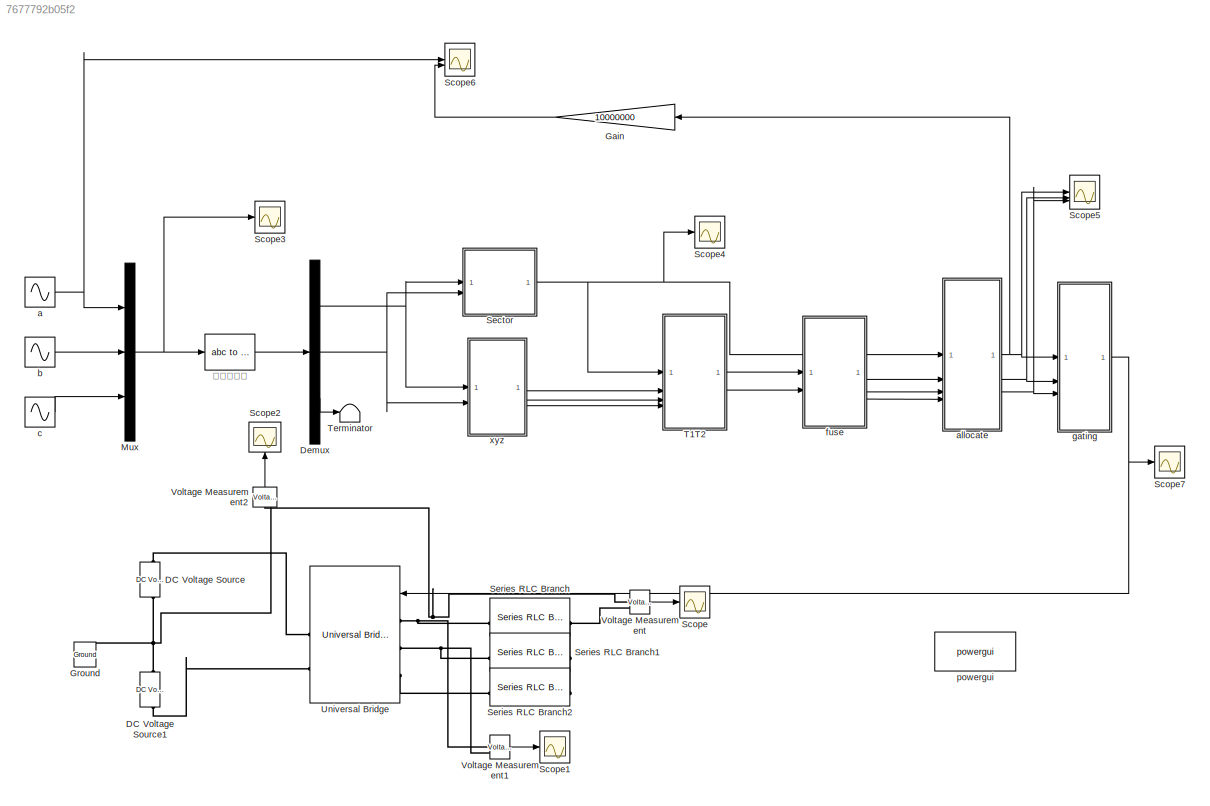
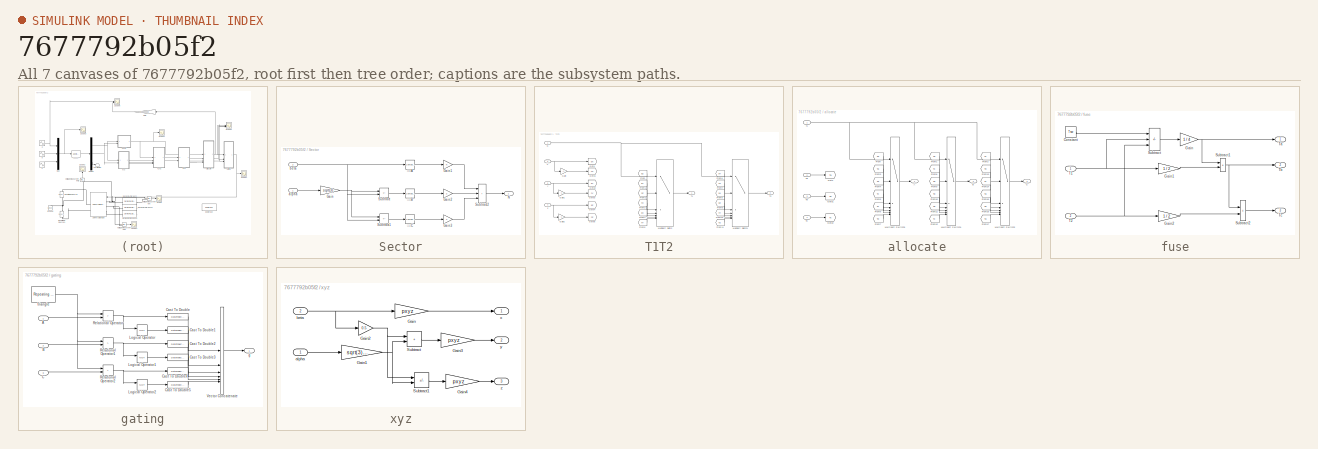
[diagram: thumbnail index - all 7 canvases of the model, root first then tree order]
MODEL slx_7677792b05f2
KIND model
CONFIG AbsTol = auto
CONFIG EnableMultiTasking = off
CONFIG FixedStep = auto
CONFIG MaxStep = auto
CONFIG MinStep = auto
CONFIG RelTol = 1e-3
CONFIG SampleTimeConstraint = Unconstrained
CONFIG SolverName = FixedStepAuto
CONFIG StartTime = 0.0
CONFIG StopTime = 0.1
BLOCK [Reference] DC Voltage Source  REF=spsDCVoltageSourceLib/DC Voltage Source
  LibrarySourceBlock = sps_lib/Sources/DC Voltage Source
  SourceBlock = spsDCVoltageSourceLib/DC Voltage Source
  SourceType = DC Voltage Source
BLOCK [Reference] DC Voltage Source1  REF=spsDCVoltageSourceLib/DC Voltage Source
  LibrarySourceBlock = sps_lib/Sources/DC Voltage Source
  SourceBlock = spsDCVoltageSourceLib/DC Voltage Source
  SourceType = DC Voltage Source
BLOCK [Demux] Demux
  Outputs = 3
BLOCK [Gain] Gain
  Gain = 10000000
BLOCK [Reference] Ground  REF=spsGroundLib/Ground
  LibrarySourceBlock = sps_lib/Utilities/Ground
  NameLocation = right
  SourceBlock = spsGroundLib/Ground
  SourceType = Ground
BLOCK [Mux] Mux
  DisplayOption = bar
  Inputs = 3
BLOCK [Scope] Scope
  Floating = off
  NumInputPorts = 1
  ScopeSpecificationString = Simulink.scopes.TimeScopeBlockCfg('CurrentConfiguration', extmgr.ConfigurationSet(extmgr.Configuration('Core','General UI',true),extmgr.Configuration('Core','Source UI',true),extmgr.Configuration('Sources','WiredSimulink',true),extmgr.Configuration('Visuals','Time Domain',true,'SerializedDisplays',{struct('MinYLimReal','-416.59303','MaxYLimReal','416.5969','YLabelReal','','MinYLimMag',' 0.00000','...<+1438ch>
BLOCK [Scope] Scope1
  Floating = off
  NumInputPorts = 1
  ScopeSpecificationString = Simulink.scopes.TimeScopeBlockCfg('CurrentConfiguration', extmgr.ConfigurationSet(extmgr.Configuration('Core','General UI',true),extmgr.Configuration('Core','Source UI',true),extmgr.Configuration('Sources','WiredSimulink',true,'DataLoggingVariableName','ScopeData1'),extmgr.Configuration('Visuals','Time Domain',true,'SerializedDisplays',{struct('MinYLimReal','-625.04011','MaxYLimReal','625.04018','...<+1501ch>
BLOCK [Scope] Scope2
  Floating = off
  NameLocation = right
  NumInputPorts = 1
  ScopeSpecificationString = Simulink.scopes.TimeScopeBlockCfg('CurrentConfiguration', extmgr.ConfigurationSet(extmgr.Configuration('Core','General UI',true),extmgr.Configuration('Core','Source UI',true),extmgr.Configuration('Sources','WiredSimulink',true,'DataLoggingVariableName','ScopeData2'),extmgr.Configuration('Visuals','Time Domain',true,'SerializedDisplays',{struct('MinYLimReal','-312.73361','MaxYLimReal','312.73406','...<+1552ch>
BLOCK [Scope] Scope3
  Floating = off
  NumInputPorts = 1
  ScopeSpecificationString = Simulink.scopes.TimeScopeBlockCfg('CurrentConfiguration', extmgr.ConfigurationSet(extmgr.Configuration('Core','General UI',true),extmgr.Configuration('Core','Source UI',true),extmgr.Configuration('Sources','WiredSimulink',true,'DataLoggingVariableName','ScopeData3'),extmgr.Configuration('Visuals','Time Domain',true,'SerializedDisplays',{struct('MinYLimReal','-224.53656','MaxYLimReal','224.53656','...<+1471ch>
BLOCK [Scope] Scope4
  Floating = off
  NumInputPorts = 1
  ScopeSpecificationString = Simulink.scopes.TimeScopeBlockCfg('CurrentConfiguration', extmgr.ConfigurationSet(extmgr.Configuration('Core','General UI',true),extmgr.Configuration('Core','Source UI',true),extmgr.Configuration('Sources','WiredSimulink',true,'DataLoggingVariableName','ScopeData4'),extmgr.Configuration('Visuals','Time Domain',true,'SerializedDisplays',{struct('MinYLimReal','0.375','MaxYLimReal','6.625','YLabelRea...<+1465ch>
BLOCK [Scope] Scope5
  Floating = off
  NumInputPorts = 3
  ScopeSpecificationString = Simulink.scopes.TimeScopeBlockCfg('CurrentConfiguration', extmgr.ConfigurationSet(extmgr.Configuration('Core','General UI',true),extmgr.Configuration('Core','Source UI',true),extmgr.Configuration('Sources','WiredSimulink',true,'DataLoggingVariableName','ScopeData5'),extmgr.Configuration('Visuals','Time Domain',true,'SerializedDisplays',{struct('MinYLimReal','0.000007','MaxYLimReal','0.000042','YLa...<+1563ch>
BLOCK [Scope] Scope6
  Floating = off
  NumInputPorts = 2
  ScopeSpecificationString = Simulink.scopes.TimeScopeBlockCfg('CurrentConfiguration', extmgr.ConfigurationSet(extmgr.Configuration('Core','General UI',true),extmgr.Configuration('Core','Source UI',true),extmgr.Configuration('Sources','WiredSimulink',true,'DataLoggingVariableName','ScopeData6'),extmgr.Configuration('Visuals','Time Domain',true,'SerializedDisplays',{struct('MinYLimReal','-252.77833','MaxYLimReal','478.71249','...<+1489ch>
BLOCK [Scope] Scope7
  Floating = off
  NumInputPorts = 1
  ScopeSpecificationString = Simulink.scopes.TimeScopeBlockCfg('CurrentConfiguration', extmgr.ConfigurationSet(extmgr.Configuration('Core','General UI',true),extmgr.Configuration('Core','Source UI',true),extmgr.Configuration('Sources','WiredSimulink',true,'DataLoggingVariableName','ScopeData7'),extmgr.Configuration('Visuals','Time Domain',true,'SerializedDisplays',{struct('MinYLimReal','-0.125','MaxYLimReal','1.125','YLabelRe...<+1547ch>
BLOCK [SubSystem] Sector
BLOCK [Gain] Sector/Gain
  Gain = sqrt(3)
BLOCK [Gain] Sector/Gain1
BLOCK [Gain] Sector/Gain2
  Gain = 2
BLOCK [Gain] Sector/Gain3
  Gain = 4
BLOCK [Outport] Sector/N
BLOCK [Sum] Sector/Subtract
  IconShape = rectangular
  Inputs = +-
BLOCK [Sum] Sector/Subtract1
  IconShape = rectangular
  Inputs = --
BLOCK [Sum] Sector/Subtract2
  IconShape = rectangular
  Inputs = +++
BLOCK [Inport] Sector/alpha
BLOCK [Inport] Sector/beta
  Port = 2
BLOCK [Reference] Sector/准则A  REF=simulink/Logic and Bit
Operations/Compare
To Constant
  SourceBlock = simulink/Logic and Bit\nOperations/Compare\nTo Constant
  SourceType = Compare To Constant
BLOCK [Reference] Sector/准则B  REF=simulink/Logic and Bit
Operations/Compare
To Constant
  SourceBlock = simulink/Logic and Bit\nOperations/Compare\nTo Constant
  SourceType = Compare To Constant
BLOCK [Reference] Sector/准则C  REF=simulink/Logic and Bit
Operations/Compare
To Constant
  SourceBlock = simulink/Logic and Bit\nOperations/Compare\nTo Constant
  SourceType = Compare To Constant
BLOCK [Reference] Series RLC Branch  REF=spsSeriesRLCBranchLib/Series RLC Branch
  LibrarySourceBlock = sps_lib/Passives/Series RLC Branch
  SourceBlock = spsSeriesRLCBranchLib/Series RLC Branch
  SourceType = Series RLC Branch
BLOCK [Reference] Series RLC Branch1  REF=spsSeriesRLCBranchLib/Series RLC Branch
  LibrarySourceBlock = sps_lib/Passives/Series RLC Branch
  SourceBlock = spsSeriesRLCBranchLib/Series RLC Branch
  SourceType = Series RLC Branch
BLOCK [Reference] Series RLC Branch2  REF=spsSeriesRLCBranchLib/Series RLC Branch
  LibrarySourceBlock = sps_lib/Passives/Series RLC Branch
  SourceBlock = spsSeriesRLCBranchLib/Series RLC Branch
  SourceType = Series RLC Branch
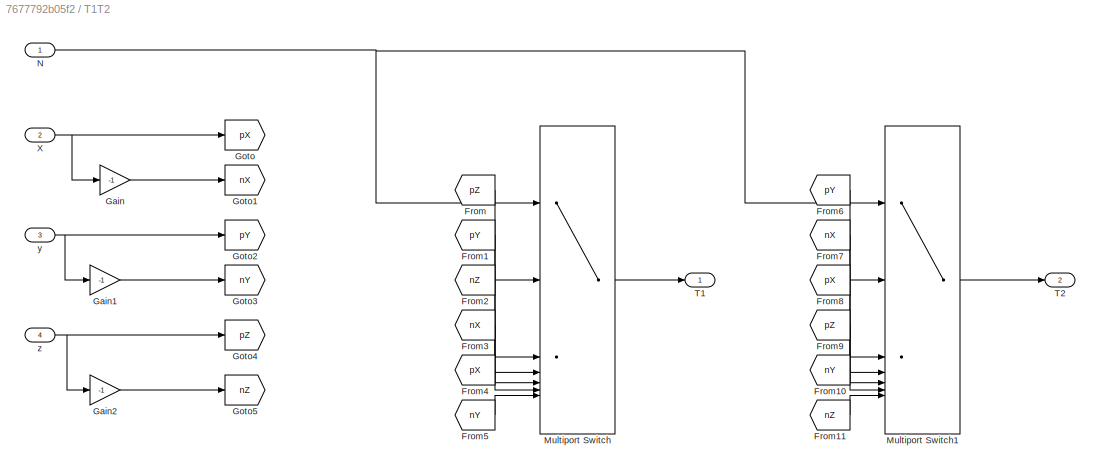
BLOCK [SubSystem] T1T2
BLOCK [From] T1T2/From
  GotoTag = pZ
BLOCK [From] T1T2/From1
  GotoTag = pY
BLOCK [From] T1T2/From10
  GotoTag = nY
BLOCK [From] T1T2/From11
  GotoTag = nZ
BLOCK [From] T1T2/From2
  GotoTag = nZ
BLOCK [From] T1T2/From3
  GotoTag = nX
BLOCK [From] T1T2/From4
  GotoTag = pX
BLOCK [From] T1T2/From5
  GotoTag = nY
BLOCK [From] T1T2/From6
  GotoTag = pY
BLOCK [From] T1T2/From7
  GotoTag = nX
BLOCK [From] T1T2/From8
  GotoTag = pX
BLOCK [From] T1T2/From9
  GotoTag = pZ
BLOCK [Gain] T1T2/Gain
  Gain = -1
BLOCK [Gain] T1T2/Gain1
  Gain = -1
BLOCK [Gain] T1T2/Gain2
  Gain = -1
BLOCK [Goto] T1T2/Goto
  GotoTag = pX
BLOCK [Goto] T1T2/Goto1
  GotoTag = nX
BLOCK [Goto] T1T2/Goto2
  GotoTag = pY
BLOCK [Goto] T1T2/Goto3
  GotoTag = nY
BLOCK [Goto] T1T2/Goto4
  GotoTag = pZ
BLOCK [Goto] T1T2/Goto5
  GotoTag = nZ
BLOCK [MultiPortSwitch] T1T2/Multiport Switch
  InputSameDT = off
  Inputs = 6
  SaturateOnIntegerOverflow = off
BLOCK [MultiPortSwitch] T1T2/Multiport Switch1
  InputSameDT = off
  Inputs = 6
  SaturateOnIntegerOverflow = off
BLOCK [Inport] T1T2/N
BLOCK [Outport] T1T2/T1
BLOCK [Outport] T1T2/T2
  Port = 2
BLOCK [Inport] T1T2/X
  Port = 2
BLOCK [Inport] T1T2/y
  Port = 3
BLOCK [Inport] T1T2/z
  Port = 4
BLOCK [Terminator] Terminator
BLOCK [Reference] Universal Bridge  REF=spsUniversalBridgeLib/Universal Bridge
  LibrarySourceBlock = sps_lib/Power Electronics/Universal Bridge
  SourceBlock = spsUniversalBridgeLib/Universal Bridge
  SourceType = Universal Bridge
BLOCK [Reference] Voltage Measurement  REF=spsVoltageMeasurementLib/Voltage Measurement
  LibrarySourceBlock = sps_lib/Sensors and Measurements/Voltage Measurement
  SourceBlock = spsVoltageMeasurementLib/Voltage Measurement
  SourceType = Voltage Measurement
  UserDataPersistent = on
BLOCK [Reference] Voltage Measurement1  REF=spsVoltageMeasurementLib/Voltage Measurement
  LibrarySourceBlock = sps_lib/Sensors and Measurements/Voltage Measurement
  SourceBlock = spsVoltageMeasurementLib/Voltage Measurement
  SourceType = Voltage Measurement
  UserDataPersistent = on
BLOCK [Reference] Voltage Measurement2  REF=spsVoltageMeasurementLib/Voltage Measurement
  LibrarySourceBlock = sps_lib/Sensors and Measurements/Voltage Measurement
  NameLocation = right
  SourceBlock = spsVoltageMeasurementLib/Voltage Measurement
  SourceType = Voltage Measurement
  UserDataPersistent = on
BLOCK [Sin] a
  Amplitude = (220 * sqrt(2)) / sqrt(3)
  Frequency = 50*2*pi
  SampleTime = 0
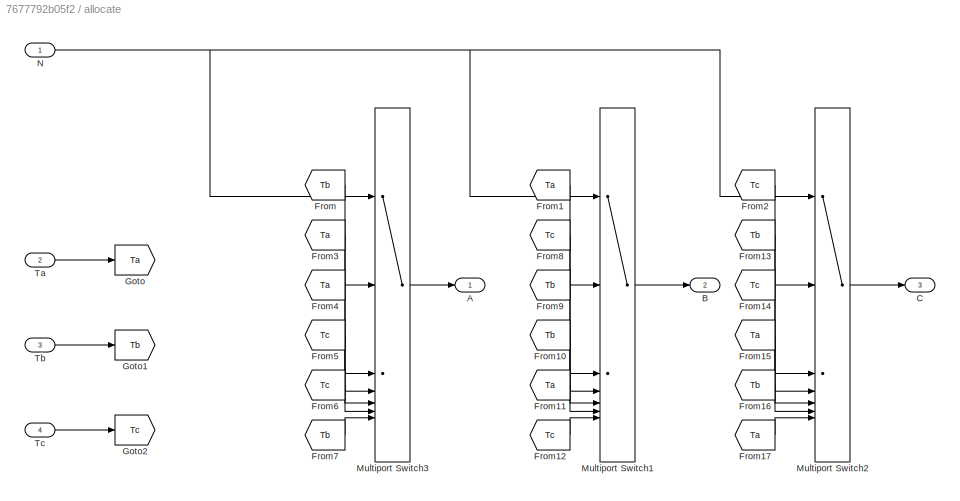
BLOCK [SubSystem] allocate
BLOCK [Outport] allocate/A
BLOCK [Outport] allocate/B
  Port = 2
BLOCK [Outport] allocate/C
  Port = 3
BLOCK [From] allocate/From
  GotoTag = Tb
BLOCK [From] allocate/From1
  GotoTag = Ta
BLOCK [From] allocate/From10
  GotoTag = Tb
BLOCK [From] allocate/From11
  GotoTag = Ta
BLOCK [From] allocate/From12
  GotoTag = Tc
BLOCK [From] allocate/From13
  GotoTag = Tb
BLOCK [From] allocate/From14
  GotoTag = Tc
BLOCK [From] allocate/From15
  GotoTag = Ta
BLOCK [From] allocate/From16
  GotoTag = Tb
BLOCK [From] allocate/From17
  GotoTag = Ta
BLOCK [From] allocate/From2
  GotoTag = Tc
BLOCK [From] allocate/From3
  GotoTag = Ta
BLOCK [From] allocate/From4
  GotoTag = Ta
BLOCK [From] allocate/From5
  GotoTag = Tc
BLOCK [From] allocate/From6
  GotoTag = Tc
BLOCK [From] allocate/From7
  GotoTag = Tb
BLOCK [From] allocate/From8
  GotoTag = Tc
BLOCK [From] allocate/From9
  GotoTag = Tb
BLOCK [Goto] allocate/Goto
  GotoTag = Ta
BLOCK [Goto] allocate/Goto1
  GotoTag = Tb
BLOCK [Goto] allocate/Goto2
  GotoTag = Tc
BLOCK [MultiPortSwitch] allocate/Multiport Switch1
  InputSameDT = off
  Inputs = 6
  SaturateOnIntegerOverflow = off
BLOCK [MultiPortSwitch] allocate/Multiport Switch2
  InputSameDT = off
  Inputs = 6
  SaturateOnIntegerOverflow = off
BLOCK [MultiPortSwitch] allocate/Multiport Switch3
  InputSameDT = off
  Inputs = 6
  SaturateOnIntegerOverflow = off
BLOCK [Inport] allocate/N
BLOCK [Inport] allocate/Ta
  Port = 2
BLOCK [Inport] allocate/Tb
  Port = 3
BLOCK [Inport] allocate/Tc
  Port = 4
BLOCK [Sin] b
  Amplitude = (220 * sqrt(2)) / sqrt(3)
  Frequency = 50*2*pi
  Phase = -pi*2/3
  SampleTime = 0
BLOCK [Sin] c
  Amplitude = (220 * sqrt(2)) / sqrt(3)
  Frequency = 50*2*pi
  Phase = -pi*4/3
  SampleTime = 0
BLOCK [SubSystem] fuse
BLOCK [Constant] fuse/Constant
  Value = Tsw
BLOCK [Gain] fuse/Gain
  Gain = 1 / 4
BLOCK [Gain] fuse/Gain1
  Gain = 1 / 2
BLOCK [Gain] fuse/Gain2
  Gain = 1 / 2
BLOCK [Sum] fuse/Subtract
  IconShape = rectangular
  Inputs = +--
BLOCK [Sum] fuse/Subtract1
  IconShape = rectangular
BLOCK [Sum] fuse/Subtract2
  IconShape = rectangular
BLOCK [Inport] fuse/T1
BLOCK [Inport] fuse/T2
  Port = 2
BLOCK [Outport] fuse/Ta
BLOCK [Outport] fuse/Tb
  Port = 2
BLOCK [Outport] fuse/Tc
  Port = 3
BLOCK [SubSystem] gating
BLOCK [Inport] gating/A
BLOCK [Inport] gating/B
  Port = 2
BLOCK [Inport] gating/C
  Port = 3
BLOCK [DataTypeConversion] gating/Cast To Double
  OutDataTypeStr = double
  RndMeth = Floor
  SaturateOnIntegerOverflow = off
BLOCK [DataTypeConversion] gating/Cast To Double1
  OutDataTypeStr = double
  RndMeth = Floor
  SaturateOnIntegerOverflow = off
BLOCK [DataTypeConversion] gating/Cast To Double2
  OutDataTypeStr = double
  RndMeth = Floor
  SaturateOnIntegerOverflow = off
BLOCK [DataTypeConversion] gating/Cast To Double3
  OutDataTypeStr = double
  RndMeth = Floor
  SaturateOnIntegerOverflow = off
BLOCK [DataTypeConversion] gating/Cast To Double4
  OutDataTypeStr = double
  RndMeth = Floor
  SaturateOnIntegerOverflow = off
BLOCK [DataTypeConversion] gating/Cast To Double5
  OutDataTypeStr = double
  RndMeth = Floor
  SaturateOnIntegerOverflow = off
BLOCK [Logic] gating/Logical Operator
  AllPortsSameDT = off
  Operator = NOT
  OutDataTypeStr = boolean
BLOCK [Logic] gating/Logical Operator1
  AllPortsSameDT = off
  Operator = NOT
  OutDataTypeStr = boolean
BLOCK [Logic] gating/Logical Operator2
  AllPortsSameDT = off
  Operator = NOT
  OutDataTypeStr = boolean
BLOCK [RelationalOperator] gating/Relational Operator
  InputSameDT = off
  Operator = >
  OutDataTypeStr = boolean
  RndMeth = Simplest
BLOCK [RelationalOperator] gating/Relational Operator1
  InputSameDT = off
  Operator = >
  OutDataTypeStr = boolean
  RndMeth = Simplest
BLOCK [RelationalOperator] gating/Relational Operator2
  InputSameDT = off
  Operator = >
  OutDataTypeStr = boolean
  RndMeth = Simplest
BLOCK [Concatenate] gating/Vector Concatenate
  NumInputs = 6
BLOCK [Outport] gating/g
BLOCK [Reference] gating/triangle  REF=simulink/Sources/Repeating
Sequence
  SourceBlock = simulink/Sources/Repeating\nSequence
  SourceType = Repeating table
BLOCK [Reference] powergui  REF=spspowerguiLib/powergui
  LibrarySourceBlock = sps_lib/powergui
  Priority = 1
  SourceBlock = spspowerguiLib/powergui
  SourceType = PSB option menu block
BLOCK [SubSystem] xyz
BLOCK [Gain] xyz/Gain
  Gain = pxyz
BLOCK [Gain] xyz/Gain1
  Gain = sqrt(3) / 2
BLOCK [Gain] xyz/Gain2
  Gain = 0.5
BLOCK [Gain] xyz/Gain3
  Gain = pxyz
BLOCK [Gain] xyz/Gain4
  Gain = pxyz
BLOCK [Sum] xyz/Subtract
  IconShape = rectangular
BLOCK [Sum] xyz/Subtract1
  IconShape = rectangular
  Inputs = +-
BLOCK [Inport] xyz/alpha
BLOCK [Inport] xyz/beta
  Port = 2
BLOCK [Outport] xyz/x
BLOCK [Outport] xyz/y
  Port = 2
BLOCK [Outport] xyz/z
  Port = 3
BLOCK [Reference] 克拉克变换  REF=spsabctoAlphaBetaZeroLib/abc to
Alpha-Beta-Zero
  LibrarySourceBlock = sps_lib/Control/abc to\nAlpha-Beta-Zero
  SourceBlock = spsabctoAlphaBetaZeroLib/abc to\nAlpha-Beta-Zero
  SourceType = abc to Alpha-Beta-Zero Transformation
NET Demux:1 -> Sector:1, xyz:1
NET Demux:2 -> Sector:2, xyz:2
LINE Demux:3 -> Terminator:1
LINE Gain:1 -> Scope6:2
NET Mux:1 -> Scope3:1, 克拉克变换:1
LINE Sector/Gain1:1 -> Sector/Subtract2:1
LINE Sector/Gain2:1 -> Sector/Subtract2:2
LINE Sector/Gain3:1 -> Sector/Subtract2:3
NET Sector/Gain:1 -> Sector/Subtract1:1, Sector/Subtract:1
LINE Sector/Subtract1:1 -> Sector/准则C:1
LINE Sector/Subtract2:1 -> Sector/N:1
LINE Sector/Subtract:1 -> Sector/准则B:1
LINE Sector/alpha:1 -> Sector/Gain:1
NET Sector/beta:1 -> Sector/Subtract1:2, Sector/Subtract:2, Sector/准则A:1
LINE Sector/准则A:1 -> Sector/Gain1:1
LINE Sector/准则B:1 -> Sector/Gain2:1
LINE Sector/准则C:1 -> Sector/Gain3:1
NET Sector:1 -> Scope4:1, T1T2:1, allocate:1
LINE T1T2/From10:1 -> T1T2/Multiport Switch1:6
LINE T1T2/From11:1 -> T1T2/Multiport Switch1:7
LINE T1T2/From1:1 -> T1T2/Multiport Switch:3
LINE T1T2/From2:1 -> T1T2/Multiport Switch:4
LINE T1T2/From3:1 -> T1T2/Multiport Switch:5
LINE T1T2/From4:1 -> T1T2/Multiport Switch:6
LINE T1T2/From5:1 -> T1T2/Multiport Switch:7
LINE T1T2/From6:1 -> T1T2/Multiport Switch1:2
LINE T1T2/From7:1 -> T1T2/Multiport Switch1:3
LINE T1T2/From8:1 -> T1T2/Multiport Switch1:4
LINE T1T2/From9:1 -> T1T2/Multiport Switch1:5
LINE T1T2/From:1 -> T1T2/Multiport Switch:2
LINE T1T2/Gain1:1 -> T1T2/Goto3:1
LINE T1T2/Gain2:1 -> T1T2/Goto5:1
LINE T1T2/Gain:1 -> T1T2/Goto1:1
LINE T1T2/Multiport Switch1:1 -> T1T2/T2:1
LINE T1T2/Multiport Switch:1 -> T1T2/T1:1
NET T1T2/N:1 -> T1T2/Multiport Switch1:1, T1T2/Multiport Switch:1
NET T1T2/X:1 -> T1T2/Gain:1, T1T2/Goto:1
NET T1T2/y:1 -> T1T2/Gain1:1, T1T2/Goto2:1
NET T1T2/z:1 -> T1T2/Gain2:1, T1T2/Goto4:1
LINE T1T2:1 -> fuse:1
LINE T1T2:2 -> fuse:2
LINE Voltage Measurement1:1 -> Scope1:1
LINE Voltage Measurement2:1 -> Scope2:1
LINE Voltage Measurement:1 -> Scope:1
NET a:1 -> Mux:1, Scope6:1
LINE allocate/From10:1 -> allocate/Multiport Switch1:5
LINE allocate/From11:1 -> allocate/Multiport Switch1:6
LINE allocate/From12:1 -> allocate/Multiport Switch1:7
LINE allocate/From13:1 -> allocate/Multiport Switch2:3
LINE allocate/From14:1 -> allocate/Multiport Switch2:4
LINE allocate/From15:1 -> allocate/Multiport Switch2:5
LINE allocate/From16:1 -> allocate/Multiport Switch2:6
LINE allocate/From17:1 -> allocate/Multiport Switch2:7
LINE allocate/From1:1 -> allocate/Multiport Switch1:2
LINE allocate/From2:1 -> allocate/Multiport Switch2:2
LINE allocate/From3:1 -> allocate/Multiport Switch3:3
LINE allocate/From4:1 -> allocate/Multiport Switch3:4
LINE allocate/From5:1 -> allocate/Multiport Switch3:5
LINE allocate/From6:1 -> allocate/Multiport Switch3:6
LINE allocate/From7:1 -> allocate/Multiport Switch3:7
LINE allocate/From8:1 -> allocate/Multiport Switch1:3
LINE allocate/From9:1 -> allocate/Multiport Switch1:4
LINE allocate/From:1 -> allocate/Multiport Switch3:2
LINE allocate/Multiport Switch1:1 -> allocate/B:1
LINE allocate/Multiport Switch2:1 -> allocate/C:1
LINE allocate/Multiport Switch3:1 -> allocate/A:1
NET allocate/N:1 -> allocate/Multiport Switch1:1, allocate/Multiport Switch2:1, allocate/Multiport Switch3:1
LINE allocate/Ta:1 -> allocate/Goto:1
LINE allocate/Tb:1 -> allocate/Goto1:1
LINE allocate/Tc:1 -> allocate/Goto2:1
NET allocate:1 -> Gain:1, Scope5:1, gating:1
NET allocate:2 -> Scope5:2, gating:2
NET allocate:3 -> Scope5:3, gating:3
LINE b:1 -> Mux:2
LINE c:1 -> Mux:3
LINE fuse/Constant:1 -> fuse/Subtract:1
LINE fuse/Gain1:1 -> fuse/Subtract1:2
LINE fuse/Gain2:1 -> fuse/Subtract2:2
NET fuse/Gain:1 -> fuse/Subtract1:1, fuse/Ta:1
NET fuse/Subtract1:1 -> fuse/Subtract2:1, fuse/Tb:1
LINE fuse/Subtract2:1 -> fuse/Tc:1
LINE fuse/Subtract:1 -> fuse/Gain:1
NET fuse/T1:1 -> fuse/Gain1:1, fuse/Subtract:2
NET fuse/T2:1 -> fuse/Gain2:1, fuse/Subtract:3
LINE fuse:1 -> allocate:2
LINE fuse:2 -> allocate:3
LINE fuse:3 -> allocate:4
LINE gating/A:1 -> gating/Relational Operator:2
LINE gating/B:1 -> gating/Relational Operator1:2
LINE gating/C:1 -> gating/Relational Operator2:2
LINE gating/Cast To Double1:1 -> gating/Vector Concatenate:2
LINE gating/Cast To Double2:1 -> gating/Vector Concatenate:3
LINE gating/Cast To Double3:1 -> gating/Vector Concatenate:4
LINE gating/Cast To Double4:1 -> gating/Vector Concatenate:5
LINE gating/Cast To Double5:1 -> gating/Vector Concatenate:6
LINE gating/Cast To Double:1 -> gating/Vector Concatenate:1
LINE gating/Logical Operator1:1 -> gating/Cast To Double3:1
LINE gating/Logical Operator2:1 -> gating/Cast To Double5:1
LINE gating/Logical Operator:1 -> gating/Cast To Double1:1
NET gating/Relational Operator1:1 -> gating/Cast To Double2:1, gating/Logical Operator1:1
NET gating/Relational Operator2:1 -> gating/Cast To Double4:1, gating/Logical Operator2:1
NET gating/Relational Operator:1 -> gating/Cast To Double:1, gating/Logical Operator:1
LINE gating/Vector Concatenate:1 -> gating/g:1
NET gating/triangle:1 -> gating/Relational Operator1:1, gating/Relational Operator2:1, gating/Relational Operator:1
NET gating:1 -> Scope7:1, Universal Bridge:1
NET xyz/Gain1:1 -> xyz/Subtract1:2, xyz/Subtract:2
NET xyz/Gain2:1 -> xyz/Subtract1:1, xyz/Subtract:1
LINE xyz/Gain3:1 -> xyz/y:1
LINE xyz/Gain4:1 -> xyz/z:1
LINE xyz/Gain:1 -> xyz/x:1
LINE xyz/Subtract1:1 -> xyz/Gain4:1
LINE xyz/Subtract:1 -> xyz/Gain3:1
LINE xyz/alpha:1 -> xyz/Gain1:1
NET xyz/beta:1 -> xyz/Gain2:1, xyz/Gain:1
LINE xyz:1 -> T1T2:2
LINE xyz:2 -> T1T2:3
LINE xyz:3 -> T1T2:4
LINE 克拉克变换:1 -> Demux:1
PLINE DC Voltage Source1:LConn1 -- Universal Bridge:RConn2
PNET net1: DC Voltage Source1:RConn1 -- DC Voltage Source:LConn1 -- Ground:LConn1 -- Voltage Measurement2:LConn2
PLINE DC Voltage Source:RConn1 -- Universal Bridge:RConn1
PNET net2: Series RLC Branch1:LConn1 -- Universal Bridge:LConn2 -- Voltage Measurement1:LConn2
PNET net3: Series RLC Branch1:RConn1 -- Series RLC Branch2:RConn1 -- Series RLC Branch:RConn1 -- Voltage Measurement:LConn2
PLINE Series RLC Branch2:LConn1 -- Universal Bridge:LConn3
PNET net4: Series RLC Branch:LConn1 -- Universal Bridge:LConn1 -- Voltage Measurement1:LConn1 -- Voltage Measurement2:LConn1 -- Voltage Measurement:LConn1
note: NET lines group one-source signal fan-out (src -> all destinations, sorted); 1:1 wires keep LINE; PNET lines group multi-terminal physical nets as a canonical sorted terminal list (undirected conserving connections); 2-terminal nets keep the pairwise PLINE form
